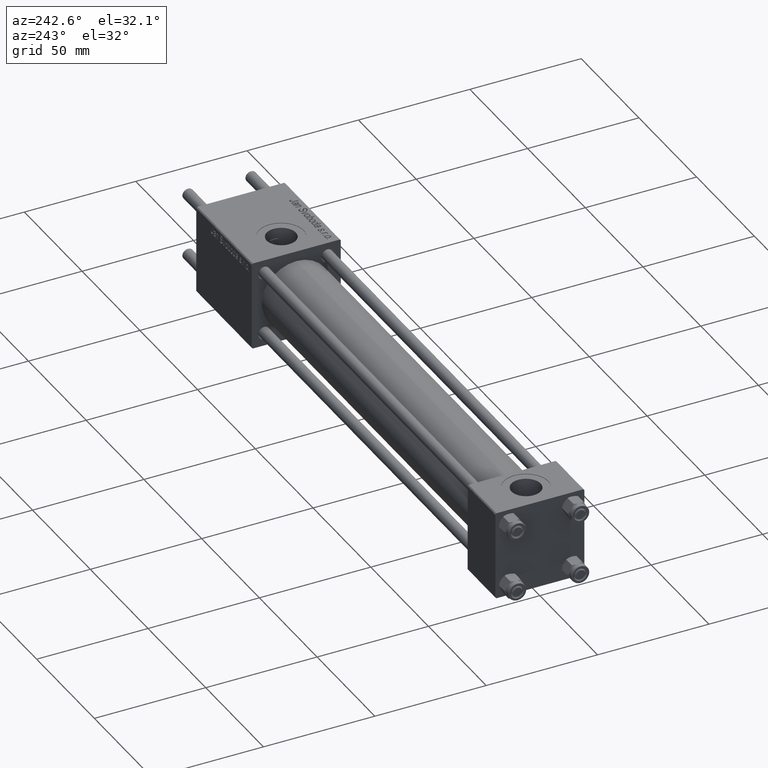
[diagram: clean part render]
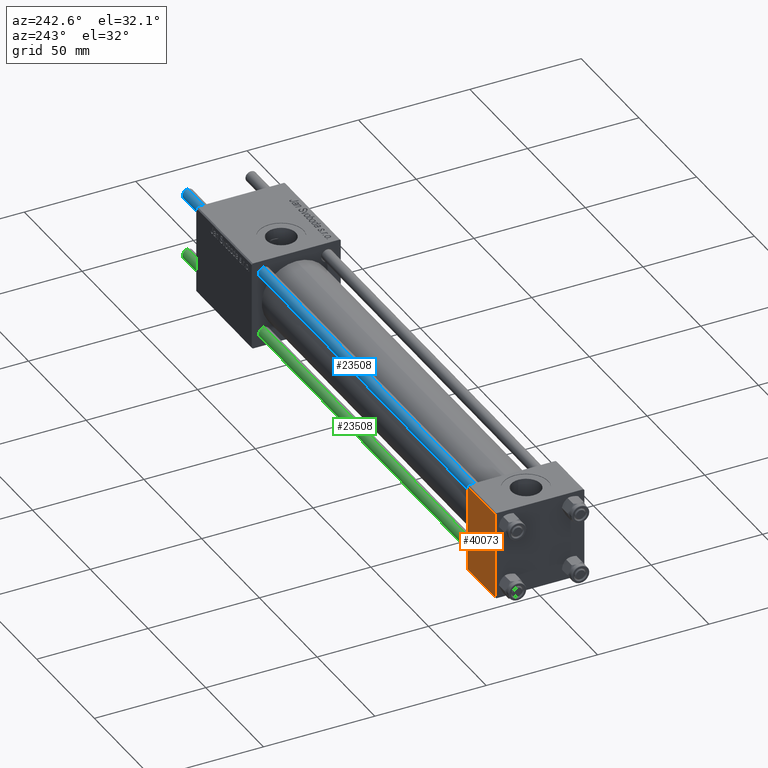
[diagram: same view with three faces highlighted in distinct colors, each labeled with its STEP entity id]
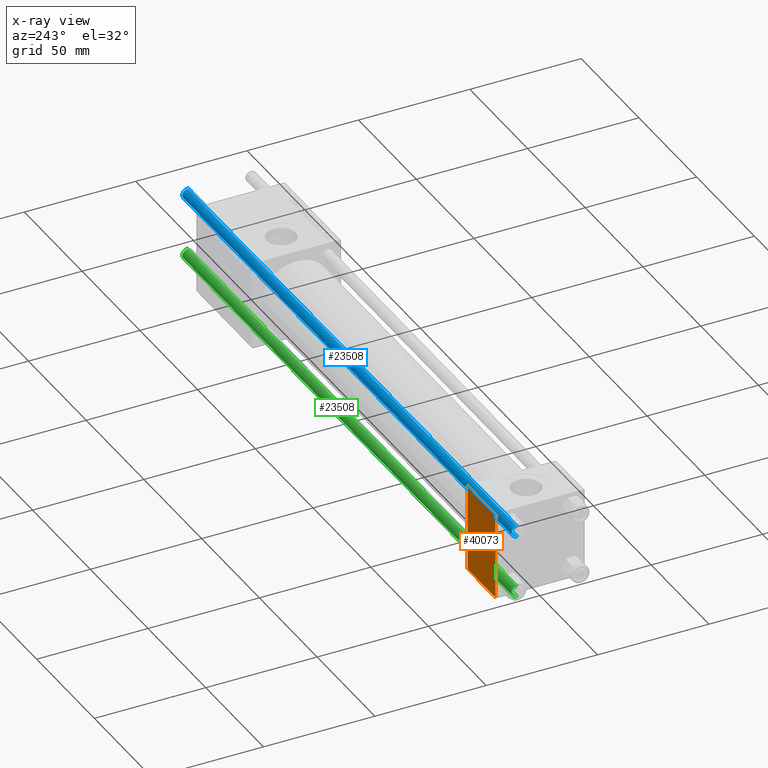
[diagram: x-ray of the same camera — body ghosted, the three highlighted faces saturated]
A machine part, auxiliary view with three faces highlighted in distinct colors.
The next image is the same camera in x-ray (body ghosted, the three faces saturated) — at least one of them is partly hidden behind the body in this view.
Their STEP definitions:

[orange] entity #40073 — the highlighted planar face has unit normal (0, 1, 0).
#215 = DIRECTION ( 'NONE',  ( 0.000000000000000000, 0.000000000000000000, -1.000000000000000000 ) ) ;
#1391 = DIRECTION ( 'NONE',  ( -0.000000000000000000, 1.000000000000000000, 0.000000000000000000 ) ) ;
#2338 = AXIS2_PLACEMENT_3D ( 'NONE', #40677, #1391, #18883 ) ;
#7131 = LINE ( 'NONE', #20300, #34651 ) ;
#8725 = CARTESIAN_POINT ( 'NONE',  ( 24.00000000000000000, 20.00000000000000000, 19.49999999999999289 ) ) ;
#8827 = LINE ( 'NONE', #52948, #11855 ) ;
#11855 = VECTOR ( 'NONE', #215, 1000.000000000000000 ) ;
#14373 = CARTESIAN_POINT ( 'NONE',  ( 24.00000000000000000, 20.00000000000000000, -19.50000000000002132 ) ) ;
#14855 = VERTEX_POINT ( 'NONE', #41835 ) ;
#14900 = DIRECTION ( 'NONE',  ( 0.000000000000000000, 0.000000000000000000, -1.000000000000000000 ) ) ;
#14964 = VERTEX_POINT ( 'NONE', #31122 ) ;
#18883 = DIRECTION ( 'NONE',  ( 0.000000000000000000, -0.000000000000000000, 1.000000000000000000 ) ) ;
#20300 = CARTESIAN_POINT ( 'NONE',  ( 24.00000000000000000, 20.00000000000000000, 19.49999999999999289 ) ) ;
#22452 = VECTOR ( 'NONE', #24109, 1000.000000000000000 ) ;
#24109 = DIRECTION ( 'NONE',  ( -1.000000000000000000, 0.000000000000000000, 0.000000000000000000 ) ) ;
#25419 = EDGE_LOOP ( 'NONE', ( #38523, #55391, #38325, #38017 ) ) ;
#27540 = CARTESIAN_POINT ( 'NONE',  ( 24.00000000000000000, 20.00000000000000000, -19.50000000000002132 ) ) ;
#29380 = EDGE_CURVE ( 'NONE', #36884, #35176, #8827, .T. ) ;
#31122 = CARTESIAN_POINT ( 'NONE',  ( 0.000000000000000000, 20.00000000000000000, 19.49999999999999289 ) ) ;
#33245 = CARTESIAN_POINT ( 'NONE',  ( 0.000000000000000000, 20.00000000000000000, 20.00000000000000000 ) ) ;
#34651 = VECTOR ( 'NONE', #50973, 1000.000000000000000 ) ;
#35176 = VERTEX_POINT ( 'NONE', #27540 ) ;
#36884 = VERTEX_POINT ( 'NONE', #8725 ) ;
#38017 = ORIENTED_EDGE ( 'NONE', *, *, #55767, .T. ) ;
#38325 = ORIENTED_EDGE ( 'NONE', *, *, #50643, .F. ) ;
#38523 = ORIENTED_EDGE ( 'NONE', *, *, #29380, .T. ) ;
#39113 = VECTOR ( 'NONE', #14900, 1000.000000000000000 ) ;
#39681 = EDGE_CURVE ( 'NONE', #35176, #14855, #45611, .T. ) ;
#40073 = ADVANCED_FACE ( 'NONE', ( #49273 ), #44970, .T. ) ;
#40677 = CARTESIAN_POINT ( 'NONE',  ( 24.00000000000000000, 20.00000000000000000, 20.00000000000000000 ) ) ;
#41835 = CARTESIAN_POINT ( 'NONE',  ( 0.000000000000000000, 20.00000000000000000, -19.50000000000002132 ) ) ;
#44970 = PLANE ( 'NONE',  #2338 ) ;
#45611 = LINE ( 'NONE', #14373, #22452 ) ;
#49273 = FACE_OUTER_BOUND ( 'NONE', #25419, .T. ) ;
#50437 = LINE ( 'NONE', #33245, #39113 ) ;
#50643 = EDGE_CURVE ( 'NONE', #14964, #14855, #50437, .T. ) ;
#50973 = DIRECTION ( 'NONE',  ( 1.000000000000000000, 0.000000000000000000, 0.000000000000000000 ) ) ;
#52948 = CARTESIAN_POINT ( 'NONE',  ( 24.00000000000000000, 20.00000000000000000, 20.00000000000000000 ) ) ;
#55391 = ORIENTED_EDGE ( 'NONE', *, *, #39681, .T. ) ;
#55767 = EDGE_CURVE ( 'NONE', #14964, #36884, #7131, .T. ) ;

[blue] entity #23508 — the highlighted cylindrical surface (edge-blend (fillet) strip) has radius 2.5 mm, axis along (1, -0, -0).
#296 = VECTOR ( 'NONE', #13328, 1000.000000000000000 ) ;
#3149 = EDGE_CURVE ( 'NONE', #30645, #36281, #35109, .T. ) ;
#4945 = ORIENTED_EDGE ( 'NONE', *, *, #3149, .T. ) ;
#5060 = AXIS2_PLACEMENT_3D ( 'NONE', #56450, #48132, #30102 ) ;
#5942 = CARTESIAN_POINT ( 'NONE',  ( -2.500000000000000000, 0.000000000000000000, 285.4999999999999432 ) ) ;
#6655 = LINE ( 'NONE', #51075, #44555 ) ;
#9029 = CARTESIAN_POINT ( 'NONE',  ( 2.500000000000000000, 3.061616997868383141E-16, 286.0000000000000000 ) ) ;
#9883 = VERTEX_POINT ( 'NONE', #5942 ) ;
#10266 = DIRECTION ( 'NONE',  ( -0.000000000000000000, -0.000000000000000000, 1.000000000000000000 ) ) ;
#10940 = CARTESIAN_POINT ( 'NONE',  ( -2.500000000000000000, 0.000000000000000000, 0.4999999999999449329 ) ) ;
#12625 = DIRECTION ( 'NONE',  ( -1.000000000000000000, 0.000000000000000000, 0.000000000000000000 ) ) ;
#13328 = DIRECTION ( 'NONE',  ( -0.000000000000000000, -0.000000000000000000, -1.000000000000000000 ) ) ;
#13721 = CARTESIAN_POINT ( 'NONE',  ( 0.000000000000000000, 0.000000000000000000, 0.4999999999999449329 ) ) ;
#15614 = CARTESIAN_POINT ( 'NONE',  ( 2.500000000000000000, 3.061616997868383141E-16, 285.4999999999999432 ) ) ;
#16166 = CIRCLE ( 'NONE', #31716, 2.500000000000000000 ) ;
#21188 = CARTESIAN_POINT ( 'NONE',  ( 2.500000000000000000, 3.061616997868383141E-16, 0.4999999999999449329 ) ) ;
#21204 = CYLINDRICAL_SURFACE ( 'NONE', #28187, 2.500000000000000000 ) ;
#23508 = ADVANCED_FACE ( 'NONE', ( #56173 ), #21204, .T. ) ;
#24144 = DIRECTION ( 'NONE',  ( -0.000000000000000000, -0.000000000000000000, -1.000000000000000000 ) ) ;
#26656 = EDGE_LOOP ( 'NONE', ( #31046, #4945, #46156, #48823 ) ) ;
#27471 = DIRECTION ( 'NONE',  ( 1.000000000000000000, 0.000000000000000000, 0.000000000000000000 ) ) ;
#28187 = AXIS2_PLACEMENT_3D ( 'NONE', #51870, #30958, #12625 ) ;
#28859 = CIRCLE ( 'NONE', #5060, 2.500000000000000000 ) ;
#30102 = DIRECTION ( 'NONE',  ( 1.000000000000000000, 0.000000000000000000, 0.000000000000000000 ) ) ;
#30645 = VERTEX_POINT ( 'NONE', #15614 ) ;
#30958 = DIRECTION ( 'NONE',  ( -0.000000000000000000, -0.000000000000000000, -1.000000000000000000 ) ) ;
#31046 = ORIENTED_EDGE ( 'NONE', *, *, #39934, .T. ) ;
#31716 = AXIS2_PLACEMENT_3D ( 'NONE', #13721, #10266, #27471 ) ;
#35109 = LINE ( 'NONE', #9029, #296 ) ;
#36281 = VERTEX_POINT ( 'NONE', #21188 ) ;
#39591 = VERTEX_POINT ( 'NONE', #10940 ) ;
#39934 = EDGE_CURVE ( 'NONE', #9883, #30645, #28859, .T. ) ;
#44555 = VECTOR ( 'NONE', #24144, 1000.000000000000000 ) ;
#44714 = EDGE_CURVE ( 'NONE', #36281, #39591, #16166, .T. ) ;
#46156 = ORIENTED_EDGE ( 'NONE', *, *, #44714, .T. ) ;
#48132 = DIRECTION ( 'NONE',  ( 0.000000000000000000, 0.000000000000000000, -1.000000000000000000 ) ) ;
#48823 = ORIENTED_EDGE ( 'NONE', *, *, #50152, .F. ) ;
#50152 = EDGE_CURVE ( 'NONE', #9883, #39591, #6655, .T. ) ;
#51075 = CARTESIAN_POINT ( 'NONE',  ( -2.500000000000000000, 0.000000000000000000, 286.0000000000000000 ) ) ;
#51870 = CARTESIAN_POINT ( 'NONE',  ( 0.000000000000000000, 0.000000000000000000, 286.0000000000000000 ) ) ;
#56173 = FACE_OUTER_BOUND ( 'NONE', #26656, .T. ) ;
#56450 = CARTESIAN_POINT ( 'NONE',  ( 0.000000000000000000, 0.000000000000000000, 285.4999999999999432 ) ) ;

[green] entity #23508 — the highlighted cylindrical surface (edge-blend (fillet) strip) has radius 2.5 mm, axis along (-1, -0, 0).
#296 = VECTOR ( 'NONE', #13328, 1000.000000000000000 ) ;
#3149 = EDGE_CURVE ( 'NONE', #30645, #36281, #35109, .T. ) ;
#4945 = ORIENTED_EDGE ( 'NONE', *, *, #3149, .T. ) ;
#5060 = AXIS2_PLACEMENT_3D ( 'NONE', #56450, #48132, #30102 ) ;
#5942 = CARTESIAN_POINT ( 'NONE',  ( -2.500000000000000000, 0.000000000000000000, 285.4999999999999432 ) ) ;
#6655 = LINE ( 'NONE', #51075, #44555 ) ;
#9029 = CARTESIAN_POINT ( 'NONE',  ( 2.500000000000000000, 3.061616997868383141E-16, 286.0000000000000000 ) ) ;
#9883 = VERTEX_POINT ( 'NONE', #5942 ) ;
#10266 = DIRECTION ( 'NONE',  ( -0.000000000000000000, -0.000000000000000000, 1.000000000000000000 ) ) ;
#10940 = CARTESIAN_POINT ( 'NONE',  ( -2.500000000000000000, 0.000000000000000000, 0.4999999999999449329 ) ) ;
#12625 = DIRECTION ( 'NONE',  ( -1.000000000000000000, 0.000000000000000000, 0.000000000000000000 ) ) ;
#13328 = DIRECTION ( 'NONE',  ( -0.000000000000000000, -0.000000000000000000, -1.000000000000000000 ) ) ;
#13721 = CARTESIAN_POINT ( 'NONE',  ( 0.000000000000000000, 0.000000000000000000, 0.4999999999999449329 ) ) ;
#15614 = CARTESIAN_POINT ( 'NONE',  ( 2.500000000000000000, 3.061616997868383141E-16, 285.4999999999999432 ) ) ;
#16166 = CIRCLE ( 'NONE', #31716, 2.500000000000000000 ) ;
#21188 = CARTESIAN_POINT ( 'NONE',  ( 2.500000000000000000, 3.061616997868383141E-16, 0.4999999999999449329 ) ) ;
#21204 = CYLINDRICAL_SURFACE ( 'NONE', #28187, 2.500000000000000000 ) ;
#23508 = ADVANCED_FACE ( 'NONE', ( #56173 ), #21204, .T. ) ;
#24144 = DIRECTION ( 'NONE',  ( -0.000000000000000000, -0.000000000000000000, -1.000000000000000000 ) ) ;
#26656 = EDGE_LOOP ( 'NONE', ( #31046, #4945, #46156, #48823 ) ) ;
#27471 = DIRECTION ( 'NONE',  ( 1.000000000000000000, 0.000000000000000000, 0.000000000000000000 ) ) ;
#28187 = AXIS2_PLACEMENT_3D ( 'NONE', #51870, #30958, #12625 ) ;
#28859 = CIRCLE ( 'NONE', #5060, 2.500000000000000000 ) ;
#30102 = DIRECTION ( 'NONE',  ( 1.000000000000000000, 0.000000000000000000, 0.000000000000000000 ) ) ;
#30645 = VERTEX_POINT ( 'NONE', #15614 ) ;
#30958 = DIRECTION ( 'NONE',  ( -0.000000000000000000, -0.000000000000000000, -1.000000000000000000 ) ) ;
#31046 = ORIENTED_EDGE ( 'NONE', *, *, #39934, .T. ) ;
#31716 = AXIS2_PLACEMENT_3D ( 'NONE', #13721, #10266, #27471 ) ;
#35109 = LINE ( 'NONE', #9029, #296 ) ;
#36281 = VERTEX_POINT ( 'NONE', #21188 ) ;
#39591 = VERTEX_POINT ( 'NONE', #10940 ) ;
#39934 = EDGE_CURVE ( 'NONE', #9883, #30645, #28859, .T. ) ;
#44555 = VECTOR ( 'NONE', #24144, 1000.000000000000000 ) ;
#44714 = EDGE_CURVE ( 'NONE', #36281, #39591, #16166, .T. ) ;
#46156 = ORIENTED_EDGE ( 'NONE', *, *, #44714, .T. ) ;
#48132 = DIRECTION ( 'NONE',  ( 0.000000000000000000, 0.000000000000000000, -1.000000000000000000 ) ) ;
#48823 = ORIENTED_EDGE ( 'NONE', *, *, #50152, .F. ) ;
#50152 = EDGE_CURVE ( 'NONE', #9883, #39591, #6655, .T. ) ;
#51075 = CARTESIAN_POINT ( 'NONE',  ( -2.500000000000000000, 0.000000000000000000, 286.0000000000000000 ) ) ;
#51870 = CARTESIAN_POINT ( 'NONE',  ( 0.000000000000000000, 0.000000000000000000, 286.0000000000000000 ) ) ;
#56173 = FACE_OUTER_BOUND ( 'NONE', #26656, .T. ) ;
#56450 = CARTESIAN_POINT ( 'NONE',  ( 0.000000000000000000, 0.000000000000000000, 285.4999999999999432 ) ) ;